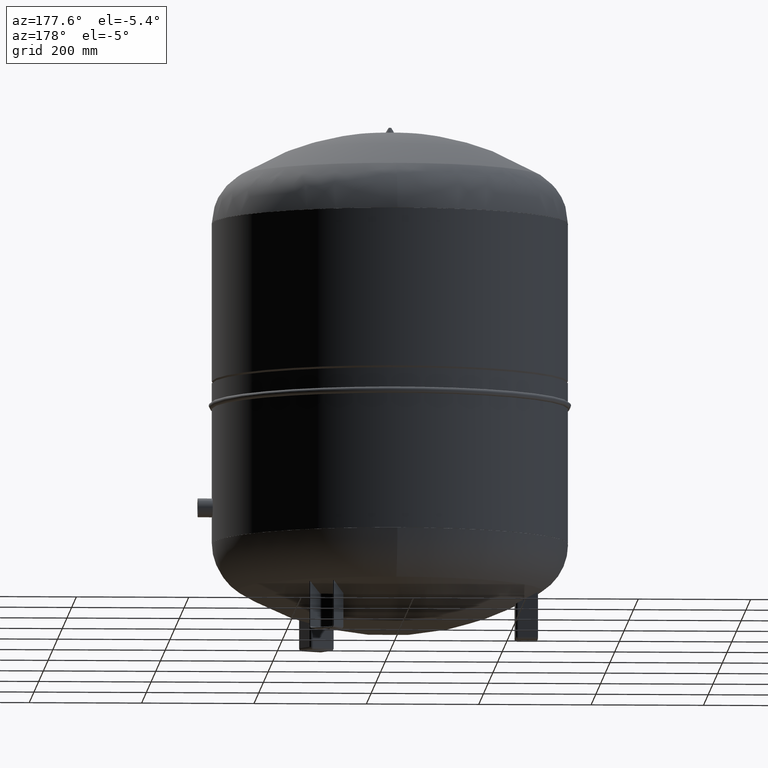
[diagram: clean part render]
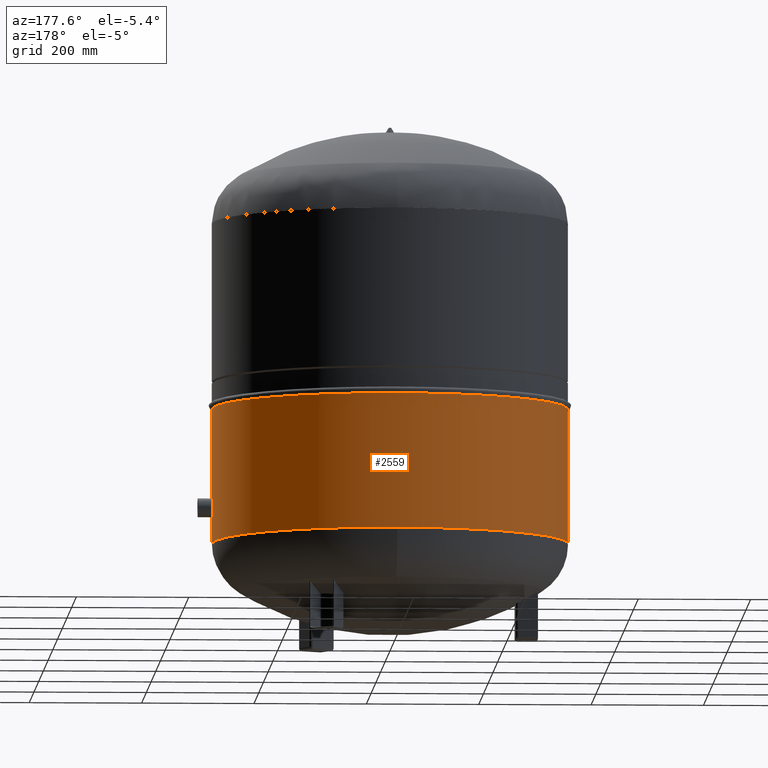
[diagram: same view with one face highlighted and labeled with its STEP entity id]
A machine part, auxiliary view. The second image highlights one B-rep face of the part: STEP entity #2559.
In plain terms, the highlighted cylindrical surface (bore or boss wall) has radius 317 mm, axis along (0, 0, 1).
Its self-contained STEP definition (entity closure, byte-faithful):
#2445=CARTESIAN_POINT('',(317.000000000000110,0.0,412.050004485004250));
#2446=VERTEX_POINT('',#2445);
#2447=CARTESIAN_POINT('',(-2.703985E-015,0.0,412.050004485004250));
#2448=DIRECTION('',(0.0,0.0,1.0));
#2449=DIRECTION('',(1.0,0.0,0.0));
#2450=AXIS2_PLACEMENT_3D('',#2447,#2448,#2449);
#2451=CIRCLE('',#2450,317.000000000000110);
#2452=EDGE_CURVE('',#2446,#2446,#2451,.T.);
#2540=CARTESIAN_POINT('',(-1.668796E-014,0.0,174.499999999999940));
#2541=DIRECTION('',(0.0,0.0,1.0));
#2542=DIRECTION('',(1.0,0.0,0.0));
#2543=AXIS2_PLACEMENT_3D('',#2540,#2541,#2542);
#2544=CYLINDRICAL_SURFACE('',#2543,317.0);
#2545=ORIENTED_EDGE('',*,*,#2452,.F.);
#2546=EDGE_LOOP('',(#2545));
#2547=FACE_OUTER_BOUND('',#2546,.T.);
#2548=CARTESIAN_POINT('',(317.0,0.0,171.999999999999940));
#2549=VERTEX_POINT('',#2548);
#2550=CARTESIAN_POINT('',(-1.668796E-014,0.0,171.999999999999940));
#2551=DIRECTION('',(0.0,0.0,-1.0));
#2552=DIRECTION('',(1.0,0.0,0.0));
#2553=AXIS2_PLACEMENT_3D('',#2550,#2551,#2552);
#2554=CIRCLE('',#2553,317.0);
#2555=EDGE_CURVE('',#2549,#2549,#2554,.T.);
#2556=ORIENTED_EDGE('',*,*,#2555,.F.);
#2557=EDGE_LOOP('',(#2556));
#2558=FACE_BOUND('',#2557,.T.);
#2559=ADVANCED_FACE('',(#2547,#2558),#2544,.T.);